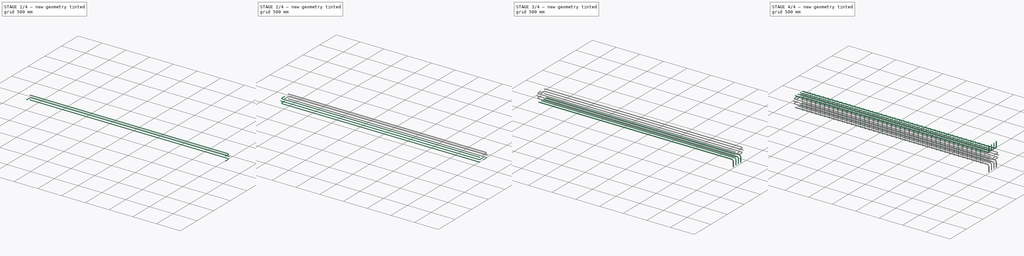
[diagram: build sequence overview — one tinted view per stage of 4, left to right]
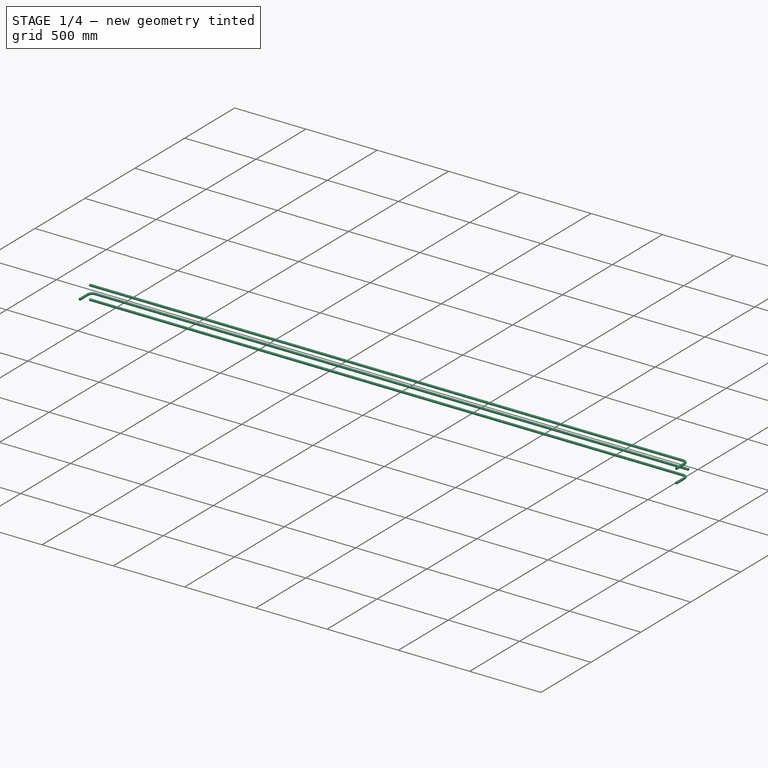
[diagram: stage 1 of 4 — iso view after this stage's code; geometry added in this stage tinted green]
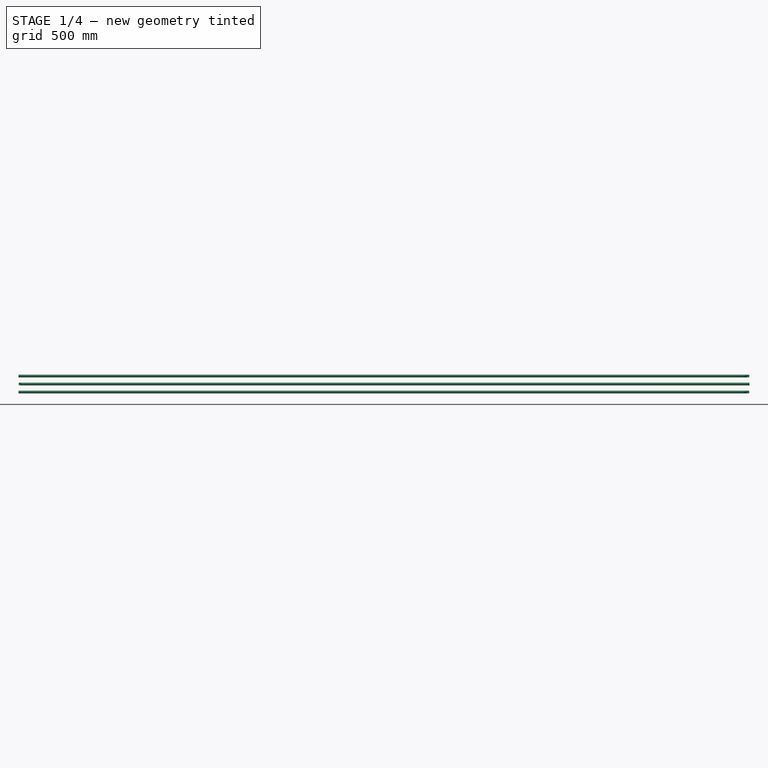
[diagram: stage 1 of 4 — front view after this stage's code; geometry added in this stage tinted green]
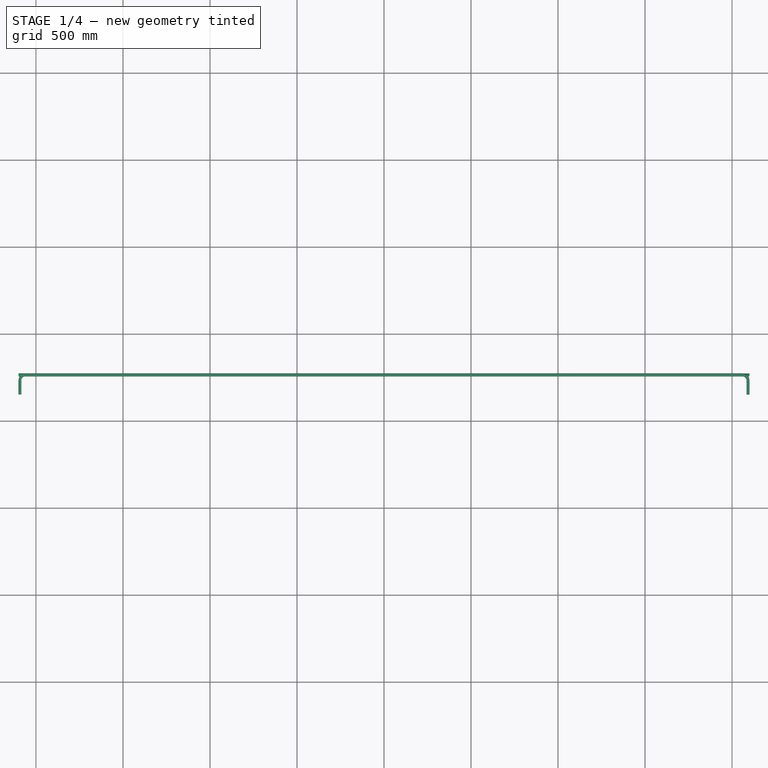
[diagram: stage 1 of 4 — top view after this stage's code; geometry added in this stage tinted green]
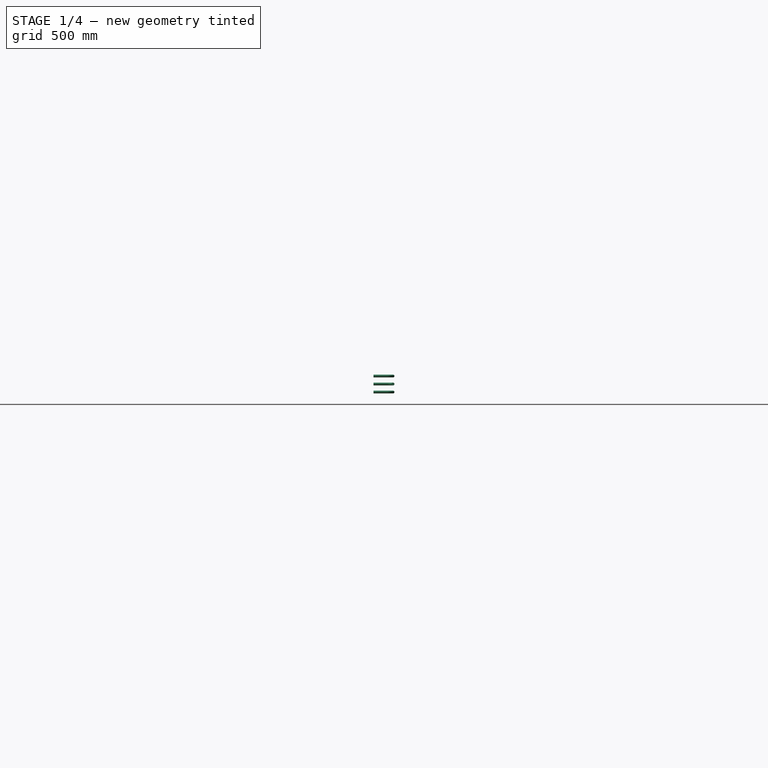
[diagram: stage 1 of 4 — right view after this stage's code; geometry added in this stage tinted green]
FCSTD DOCUMENT  (FreeCAD 0.20R29177 (Git))
Label: Beam Reinforcement
License: All rights reserved
objects: Part::FeaturePython×14, Sketcher::SketchObject×12, App::DocumentObjectGroupPython×7, Part::Part2DObjectPython×2
note: 28 computed .brp shape members not serialized (recipe doc carries the construction recipe); baked Part::Feature solids carry a one-line shape summary decoded from their .brp

FEATURE [Part::Part2DObjectPython] Rectangle  # Draft 2D object (typed FeaturePython)
  Area = 1.2e+06
  ChamferSize = 0
  Columns = 1
  FilletRadius = 0
  Height = 300
  Length = 4000
  MakeFace = true
  Rows = 1
FEATURE [Part::FeaturePython] Structure  # Arch/BIM 172 (typed FeaturePython)
  Base = -> Rectangle
  BaseMirror = false
  BaseOffsetX = 0
  BaseOffsetY = 0
  BasePerpendicularToTool = false
  BaseRotation = 0
  ComputedLength = 300
  FaceMaker = 0
  Height = 300
  HorizontalArea = 1.2e+06
  IfcData = attributes={"GlobalId": {"name": "GlobalId", "type": "IfcGloballyUniqueId", "is_enum": false, "enum_values": []}, "Description": {"... (+484 chars omitted),+1 more (map truncated)
  IfcType = 172
  Length = 0
  MoveBase = false
  MoveWithHost = false
  Nodes = (2) [(2000,150,0),(2000,150,300)]
  NodesOffset = 0
  Normal = (0,0,0)
  PerimeterLength = 8600
  PredefinedType = 0
  ToolOffsetFirst = 0
  ToolOffsetLast = 0
  VerticalArea = 2.58e+06
  Width = 180
FEATURE [App::DocumentObjectGroupPython] LeftRebars  # scripted group (container) (typed FeaturePython)
  Group = -> [Rebar007,Rebar008,Rebar009]
  HookExtension = [80,80,80]
  HookOrientation = Rear Inside | Front Inside | Rear Inside
  LRebarRounding = [2,2,2]
  LeftRebars = -> [Rebar007,Rebar008,Rebar009]
  NumberDiameterOffset = 1#16.0mm@-100.0mm+1#16.0mm@-100.0mm+1#16.0mm@-100.0mm
  RebarSpacing = 30
  RebarType = LShapeRebar | LShapeRebar | LShapeRebar
FEATURE [Sketcher::SketchObject] Sketch009
  FullyConstrained = false
  MapMode = 5
  Placement = pos=(0,0,0) rot=(1,0,0;3.14159rad)
  Support = -> [Structure]
  sketch-geometry (2):
    g0: LineSegment StartX=4092 StartY=-152 StartZ=0 EndX=4092 EndY=-264 EndZ=0
    g1: LineSegment StartX=4092 StartY=-264 StartZ=0 EndX=-100 EndY=-264 EndZ=0
FEATURE [Part::FeaturePython] Rebar010  label="LShapeRebar009"  # Arch/BIM 110 (typed FeaturePython)
  Amount = 1
  AmountCheck = true
  Base = -> Sketch009
  BottomCover = 28
  Diameter = 16
  Direction = (0,0,0)
  Distance = 0
  FrontCover = 96
  HorizontalArea = 0
  Host = -> Structure
  IfcType = 110
  LeftCover = -100
  Length = 4304
  Mark = LShapeRebar009
  MoveBase = false
  MoveWithHost = false
  OffsetEnd = 196
  OffsetStart = 104
  Orientation = Bottom Right
  PerimeterLength = 0
  PlacementList = 1 placements: [(0,0,104)]
  RebarShape = 2
  RightCover = -100
  Rounding = 2
  Spacing = 0
  TopCover = 152
  TotalLength = 4304
  TrueSpacing = 1
  VerticalArea = 0
FEATURE [Sketcher::SketchObject] Sketch010
  FullyConstrained = false
  MapMode = 5
  Placement = pos=(0,0,0) rot=(1,0,0;3.14159rad)
  Support = -> [Structure]
  sketch-geometry (2):
    g0: LineSegment StartX=-92 StartY=-152 StartZ=0 EndX=-92 EndY=-264 EndZ=0
    g1: LineSegment StartX=-92 StartY=-264 StartZ=0 EndX=4100 EndY=-264 EndZ=0
FEATURE [Part::FeaturePython] Rebar011  label="LShapeRebar010"  # Arch/BIM 110 (typed FeaturePython)
  Amount = 1
  AmountCheck = true
  Base = -> Sketch010
  BottomCover = 28
  Diameter = 16
  Direction = (0,0,0)
  Distance = 0
  FrontCover = 142
  HorizontalArea = 0
  Host = -> Structure
  IfcType = 110
  LeftCover = -100
  Length = 4304
  Mark = LShapeRebar010
  MoveBase = false
  MoveWithHost = false
  OffsetEnd = 150
  OffsetStart = 150
  Orientation = Bottom Left
  PerimeterLength = 0
  PlacementList = 1 placements: [(0,0,150)]
  RebarShape = 2
  RightCover = -100
  Rounding = 2
  Spacing = 0
  TopCover = 152
  TotalLength = 4304
  TrueSpacing = 1
  VerticalArea = 0
FEATURE [Sketcher::SketchObject] Sketch011
  FullyConstrained = false
  MapMode = 5
  Placement = pos=(0,0,0) rot=(1,0,0;3.14159rad)
  Support = -> [Structure]
  sketch-geometry (2):
    g0: LineSegment StartX=4092 StartY=-152 StartZ=0 EndX=4092 EndY=-264 EndZ=0
    g1: LineSegment StartX=4092 StartY=-264 StartZ=0 EndX=-100 EndY=-264 EndZ=0
FEATURE [Part::FeaturePython] Rebar012  label="LShapeRebar011"  # Arch/BIM 110 (typed FeaturePython)
  Amount = 1
  AmountCheck = true
  Base = -> Sketch011
  BottomCover = 28
  Diameter = 16
  Direction = (0,0,0)
  Distance = 0
  FrontCover = 188
  HorizontalArea = 0
  Host = -> Structure
  IfcType = 110
  LeftCover = -100
  Length = 4304
  Mark = LShapeRebar011
  MoveBase = false
  MoveWithHost = false
  OffsetEnd = 104
  OffsetStart = 196
  Orientation = Bottom Right
  PerimeterLength = 0
  PlacementList = 1 placements: [(0,0,196)]
  RebarShape = 2
  RightCover = -100
  Rounding = 2
  Spacing = 0
  TopCover = 152
  TotalLength = 4304
  TrueSpacing = 1
  VerticalArea = 0
FEATURE [App::DocumentObjectGroupPython] RightRebars  # scripted group (container) (typed FeaturePython)
  Group = -> [Rebar010,Rebar011,Rebar012]
  HookExtension = [80,80,80]
  HookOrientation = Front Inside | Rear Inside | Front Inside
  LRebarRounding = [2,2,2]
  NumberDiameterOffset = 1#16@-100+1#16@-100+1#16@-100
  RebarSpacing = 30
  RebarType = LShapeRebar | LShapeRebar | LShapeRebar
  RightRebars = -> [Rebar010,Rebar011,Rebar012]
FEATURE [App::DocumentObjectGroupPython] ShearReinforcement  # scripted group (container) (typed FeaturePython)
  Group = -> [LeftRebars,RightRebars]
  ShearReinforcementGroups = -> [LeftRebars,RightRebars]
FEATURE [App::DocumentObjectGroupPython] BeamReinforcement  # scripted group (container) (typed FeaturePython)
  Group = -> [Stirrups,TopReinforcement,BottomReinforcement,ShearReinforcement]
  ReinforcementGroups = -> [Stirrups,TopReinforcement,BottomReinforcement,ShearReinforcement]
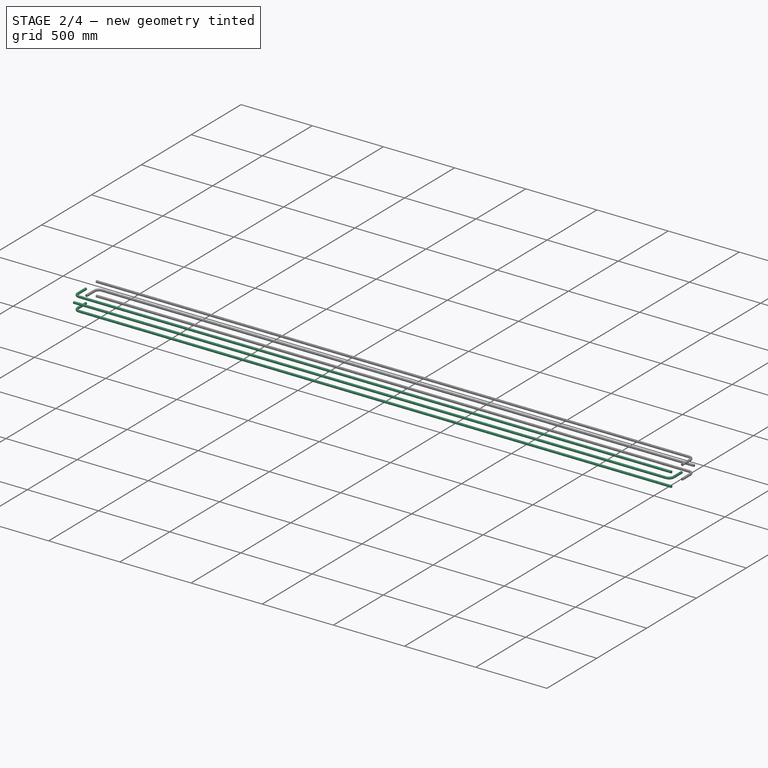
[diagram: stage 2 of 4 — iso view after this stage's code; geometry added in this stage tinted green]
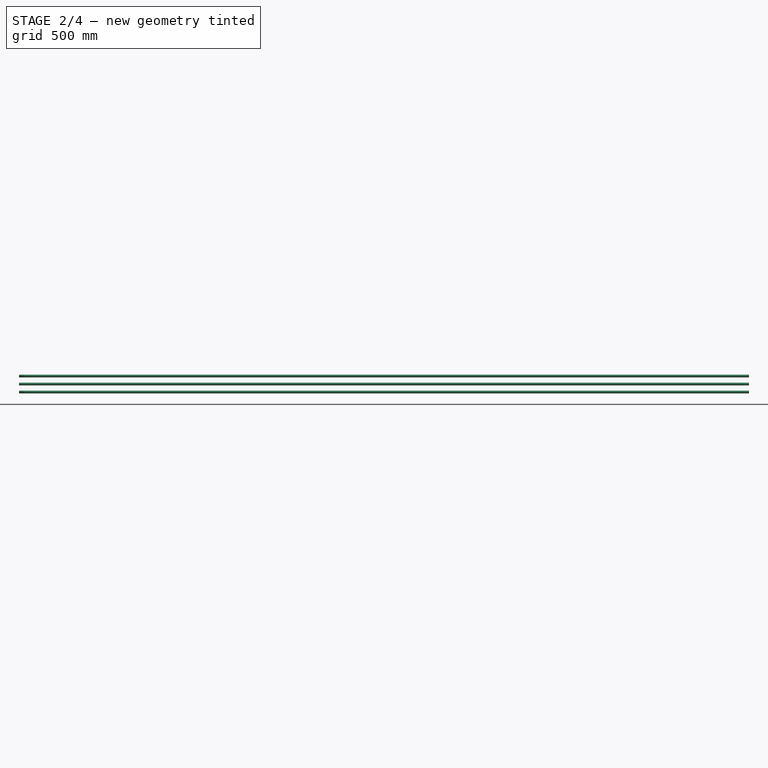
[diagram: stage 2 of 4 — front view after this stage's code; geometry added in this stage tinted green]
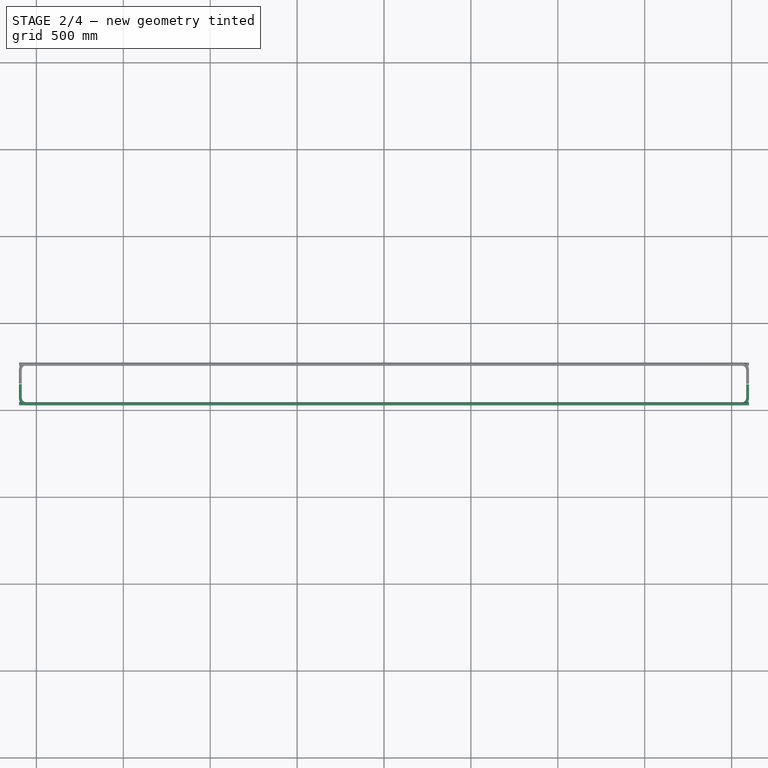
[diagram: stage 2 of 4 — top view after this stage's code; geometry added in this stage tinted green]
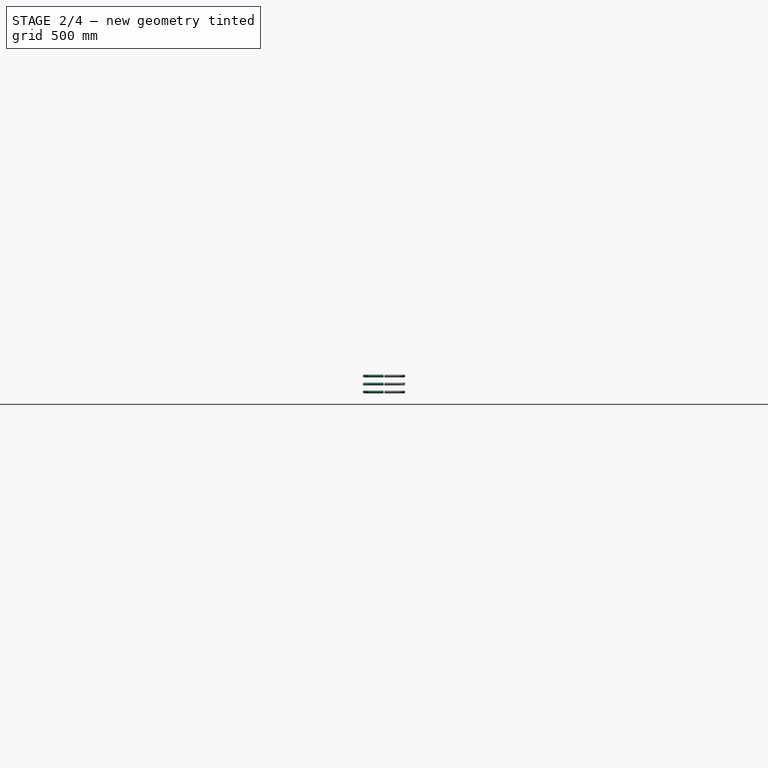
[diagram: stage 2 of 4 — right view after this stage's code; geometry added in this stage tinted green]
FEATURE [App::DocumentObjectGroupPython] BottomReinforcement  # scripted group (container) (typed FeaturePython)
  BottomRebars = -> [Rebar004,Rebar005,Rebar006]
  Group = -> [Rebar004,Rebar005,Rebar006]
  LayerSpacing = [30]
  NumberDiameterOffset = 1#20.0@-60.0+2#16.0@-60.0+1#20.0@-60.0
FEATURE [Sketcher::SketchObject] Sketch006
  FullyConstrained = false
  MapMode = 5
  Placement = pos=(0,0,0) rot=(1,0,0;3.14159rad)
  Support = -> [Structure]
  sketch-geometry (2):
    g0: LineSegment StartX=-92 StartY=-148 StartZ=0 EndX=-92 EndY=-36 EndZ=0
    g1: LineSegment StartX=-92 StartY=-36 StartZ=0 EndX=4100 EndY=-36 EndZ=0
FEATURE [Part::FeaturePython] Rebar007  label="LShapeRebar006"  # Arch/BIM 110 (typed FeaturePython)
  Amount = 1
  AmountCheck = true
  Base = -> Sketch006
  BottomCover = 152
  Diameter = 16
  Direction = (0,0,0)
  Distance = 0
  FrontCover = 96
  HorizontalArea = 0
  Host = -> Structure
  IfcType = 110
  LeftCover = -100
  Length = 4304
  Mark = LShapeRebar006
  MoveBase = false
  MoveWithHost = false
  OffsetEnd = 196
  OffsetStart = 104
  Orientation = Top Left
  PerimeterLength = 0
  PlacementList = 1 placements: [(0,0,104)]
  RebarShape = 2
  RightCover = -100
  Rounding = 2
  Spacing = 0
  TopCover = 28
  TotalLength = 4304
  TrueSpacing = 1
  VerticalArea = 0
FEATURE [Sketcher::SketchObject] Sketch007
  FullyConstrained = false
  MapMode = 5
  Placement = pos=(0,0,0) rot=(1,0,0;3.14159rad)
  Support = -> [Structure]
  sketch-geometry (2):
    g0: LineSegment StartX=4092 StartY=-148 StartZ=0 EndX=4092 EndY=-36 EndZ=0
    g1: LineSegment StartX=4092 StartY=-36 StartZ=0 EndX=-100 EndY=-36 EndZ=0
FEATURE [Part::FeaturePython] Rebar008  label="LShapeRebar007"  # Arch/BIM 110 (typed FeaturePython)
  Amount = 1
  AmountCheck = true
  Base = -> Sketch007
  BottomCover = 152
  Diameter = 16
  Direction = (0,0,0)
  Distance = 0
  FrontCover = 142
  HorizontalArea = 0
  Host = -> Structure
  IfcType = 110
  LeftCover = -100
  Length = 4304
  Mark = LShapeRebar007
  MoveBase = false
  MoveWithHost = false
  OffsetEnd = 150
  OffsetStart = 150
  Orientation = Top Right
  PerimeterLength = 0
  PlacementList = 1 placements: [(0,0,150)]
  RebarShape = 2
  RightCover = -100
  Rounding = 2
  Spacing = 0
  TopCover = 28
  TotalLength = 4304
  TrueSpacing = 1
  VerticalArea = 0
FEATURE [Sketcher::SketchObject] Sketch008
  FullyConstrained = false
  MapMode = 5
  Placement = pos=(0,0,0) rot=(1,0,0;3.14159rad)
  Support = -> [Structure]
  sketch-geometry (2):
    g0: LineSegment StartX=-92 StartY=-148 StartZ=0 EndX=-92 EndY=-36 EndZ=0
    g1: LineSegment StartX=-92 StartY=-36 StartZ=0 EndX=4100 EndY=-36 EndZ=0
FEATURE [Part::FeaturePython] Rebar009  label="LShapeRebar008"  # Arch/BIM 110 (typed FeaturePython)
  Amount = 1
  AmountCheck = true
  Base = -> Sketch008
  BottomCover = 152
  Diameter = 16
  Direction = (0,0,0)
  Distance = 0
  FrontCover = 188
  HorizontalArea = 0
  Host = -> Structure
  IfcType = 110
  LeftCover = -100
  Length = 4304
  Mark = LShapeRebar008
  MoveBase = false
  MoveWithHost = false
  OffsetEnd = 104
  OffsetStart = 196
  Orientation = Top Left
  PerimeterLength = 0
  PlacementList = 1 placements: [(0,0,196)]
  RebarShape = 2
  RightCover = -100
  Rounding = 2
  Spacing = 0
  TopCover = 28
  TotalLength = 4304
  TrueSpacing = 1
  VerticalArea = 0
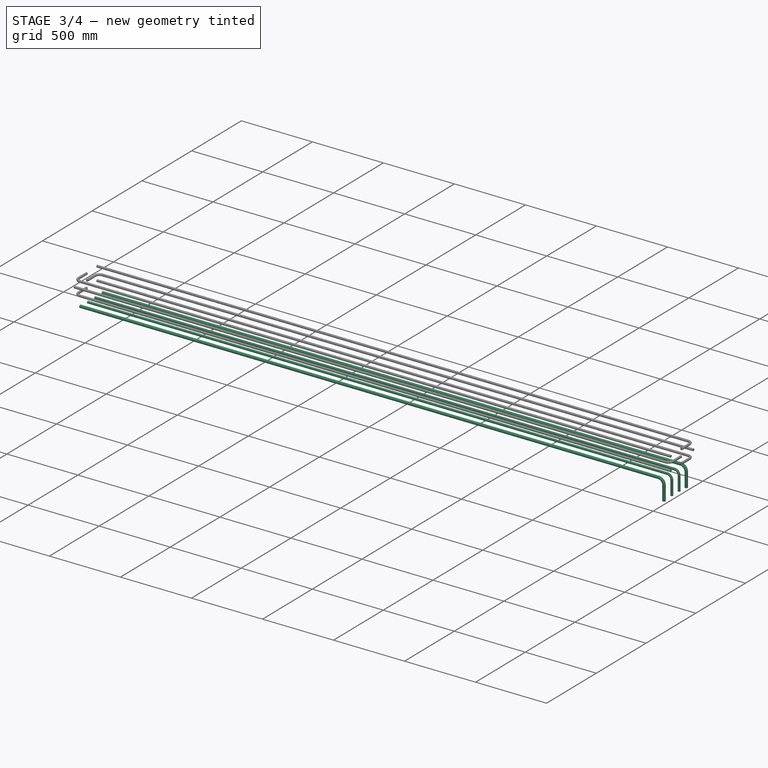
[diagram: stage 3 of 4 — iso view after this stage's code; geometry added in this stage tinted green]
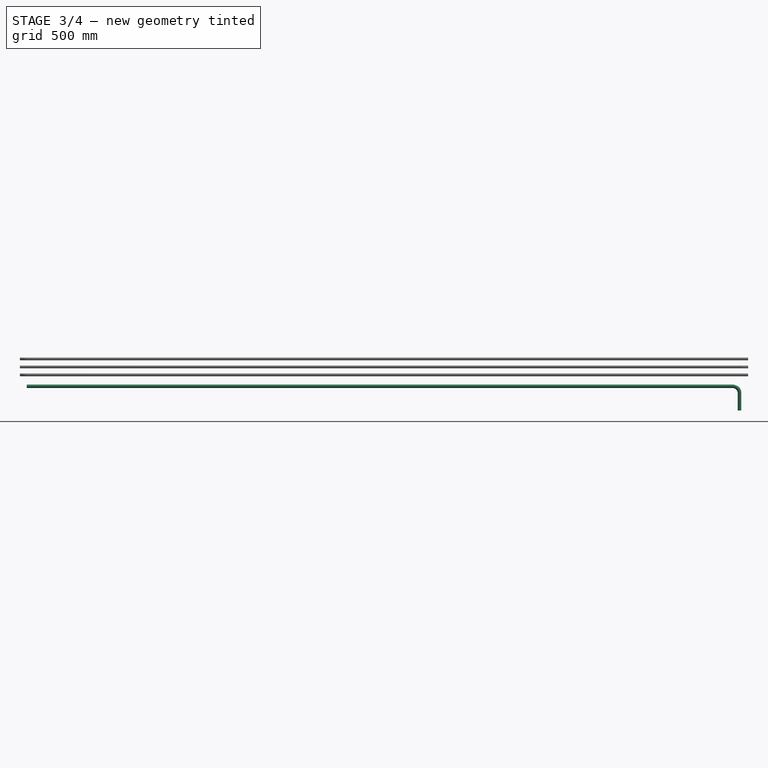
[diagram: stage 3 of 4 — front view after this stage's code; geometry added in this stage tinted green]
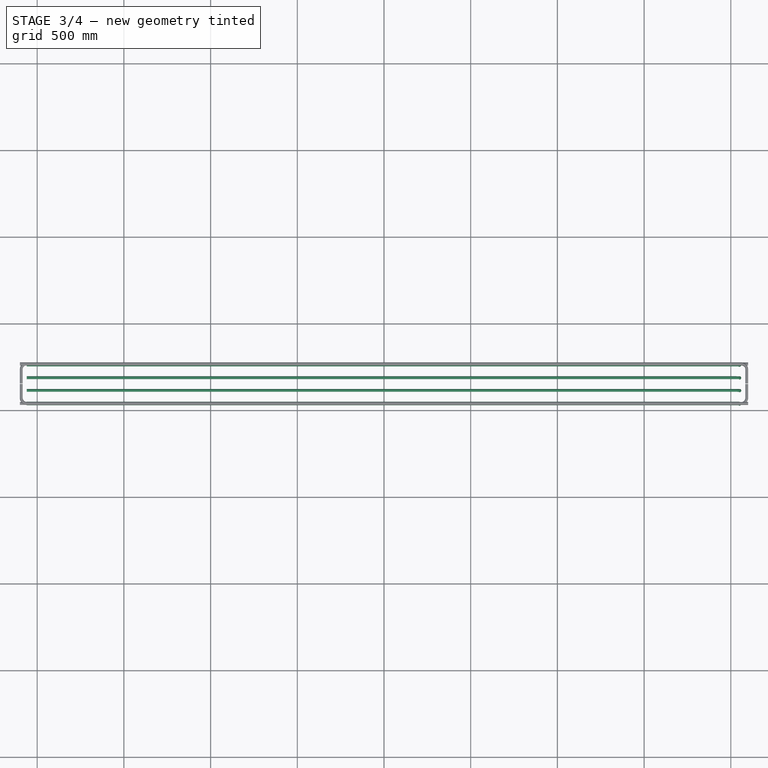
[diagram: stage 3 of 4 — top view after this stage's code; geometry added in this stage tinted green]
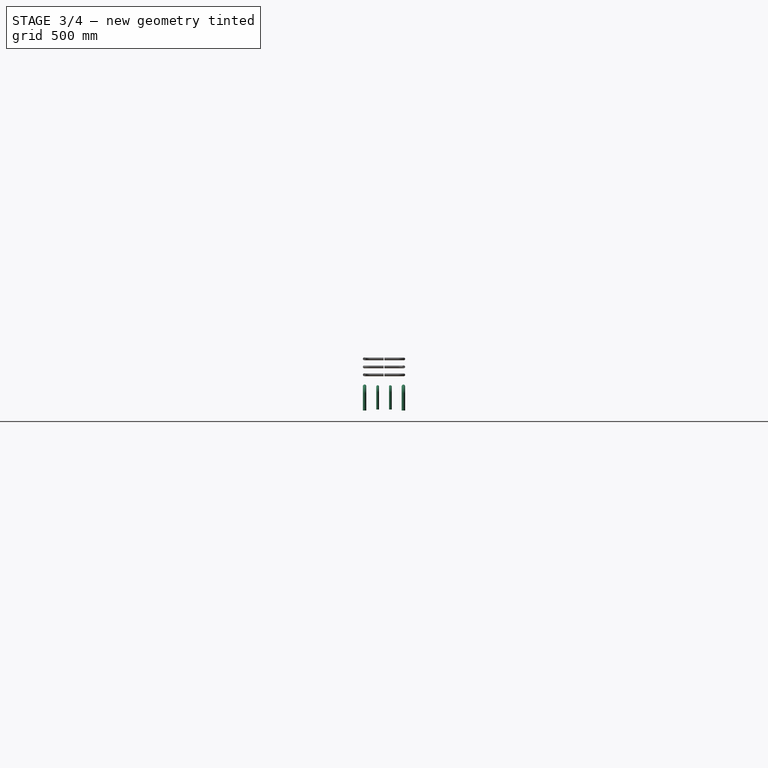
[diagram: stage 3 of 4 — right view after this stage's code; geometry added in this stage tinted green]
FEATURE [App::DocumentObjectGroupPython] TopReinforcement  # scripted group (container) (typed FeaturePython)
  Group = -> [Rebar001,Rebar002,Rebar003]
  LayerSpacing = [30]
  NumberDiameterOffset = 1#20.0@-60.0+2#16.0@-60.0+1#20.0@-60.0
  TopRebars = -> [Rebar001,Rebar002,Rebar003]
FEATURE [Sketcher::SketchObject] Sketch003
  FullyConstrained = false
  MapMode = 5
  Placement = pos=(0,300,0) rot=(0,0.707107,0.707107;3.14159rad)
  Support = -> [Structure]
  sketch-geometry (2):
    g0: LineSegment StartX=-4050 StartY=-102 StartZ=0 EndX=-4050 EndY=38 EndZ=0
    g1: LineSegment StartX=-4050 StartY=38 StartZ=0 EndX=60 EndY=38 EndZ=0
FEATURE [Part::FeaturePython] Rebar004  label="LShapeRebar003"  # Arch/BIM 110 (typed FeaturePython)
  Amount = 1
  AmountCheck = true
  Base = -> Sketch003
  BottomCover = 28
  Diameter = 20
  Direction = (0,0,0)
  Distance = 0
  FrontCover = 28
  HorizontalArea = 0
  Host = -> Structure
  IfcType = 110
  LeftCover = -60
  Length = 4250
  Mark = LShapeRebar003
  MoveBase = false
  MoveWithHost = false
  OffsetEnd = 38
  OffsetStart = 38
  Orientation = Bottom Left
  PerimeterLength = 0
  PlacementList = 1 placements: [(0,-38,8.43769e-15)]
  RebarShape = 2
  RightCover = -60
  Rounding = 2
  Spacing = 0
  TopCover = 402
  TotalLength = 4250
  TrueSpacing = 1
  VerticalArea = 0
FEATURE [Sketcher::SketchObject] Sketch004
  FullyConstrained = false
  MapMode = 5
  Placement = pos=(0,300,0) rot=(0,0.707107,0.707107;3.14159rad)
  Support = -> [Structure]
  sketch-geometry (2):
    g0: LineSegment StartX=-4052 StartY=-96 StartZ=0 EndX=-4052 EndY=36 EndZ=0
    g1: LineSegment StartX=-4052 StartY=36 StartZ=0 EndX=60 EndY=36 EndZ=0
FEATURE [Part::FeaturePython] Rebar005  label="LShapeRebar004"  # Arch/BIM 110 (typed FeaturePython)
  Amount = 2
  AmountCheck = true
  Base = -> Sketch004
  BottomCover = 28
  Diameter = 16
  Direction = (0,0,0)
  Distance = 0
  FrontCover = 105.333
  HorizontalArea = 0
  Host = -> Structure
  IfcType = 110
  LeftCover = -60
  Length = 4244
  Mark = LShapeRebar004
  MoveBase = false
  MoveWithHost = false
  OffsetEnd = 113.333
  OffsetStart = 113.333
  Orientation = Bottom Left
  PerimeterLength = 0
  PlacementList = 2 placements: [(0,-113.333,2.51651e-14),(0,-186.667,4.14483e-14)]
  RebarShape = 2
  RightCover = -60
  Rounding = 2
  Spacing = 73.3333
  TopCover = 396
  TotalLength = 8488
  TrueSpacing = 2
  VerticalArea = 0
FEATURE [Sketcher::SketchObject] Sketch005
  FullyConstrained = false
  MapMode = 5
  Placement = pos=(0,300,0) rot=(0,0.707107,0.707107;3.14159rad)
  Support = -> [Structure]
  sketch-geometry (2):
    g0: LineSegment StartX=-4050 StartY=-102 StartZ=0 EndX=-4050 EndY=38 EndZ=0
    g1: LineSegment StartX=-4050 StartY=38 StartZ=0 EndX=60 EndY=38 EndZ=0
FEATURE [Part::FeaturePython] Rebar006  label="LShapeRebar005"  # Arch/BIM 110 (typed FeaturePython)
  Amount = 1
  AmountCheck = true
  Base = -> Sketch005
  BottomCover = 28
  Diameter = 20
  Direction = (0,0,0)
  Distance = 0
  FrontCover = 252
  HorizontalArea = 0
  Host = -> Structure
  IfcType = 110
  LeftCover = -60
  Length = 4250
  Mark = LShapeRebar005
  MoveBase = false
  MoveWithHost = false
  OffsetEnd = 38
  OffsetStart = 262
  Orientation = Bottom Left
  PerimeterLength = 0
  PlacementList = 1 placements: [(0,-262,5.81757e-14)]
  RebarShape = 2
  RightCover = -60
  Rounding = 2
  Spacing = 0
  TopCover = 402
  TotalLength = 4250
  TrueSpacing = 1
  VerticalArea = 0
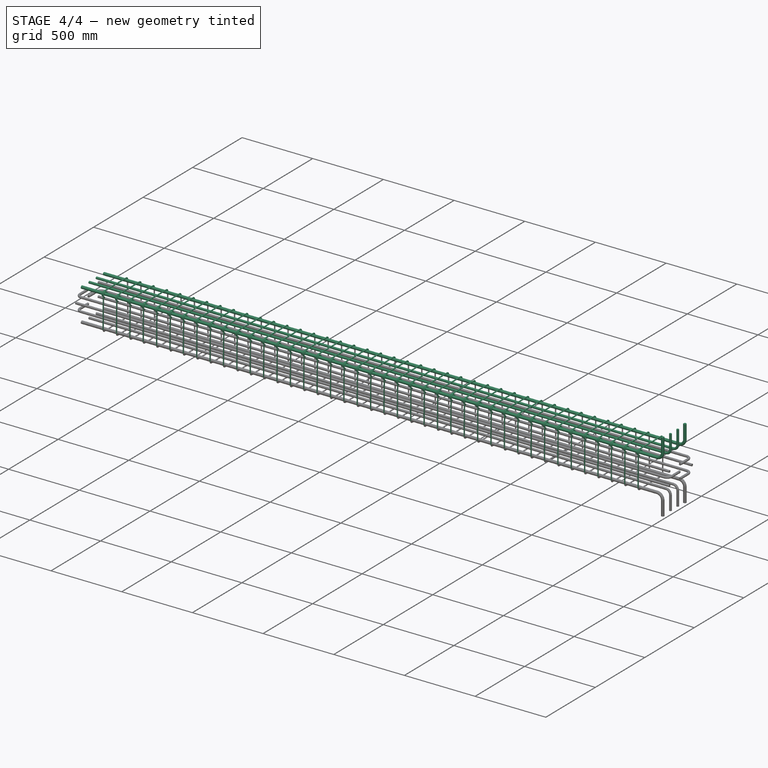
[diagram: stage 4 of 4 — iso view after this stage's code; geometry added in this stage tinted green]
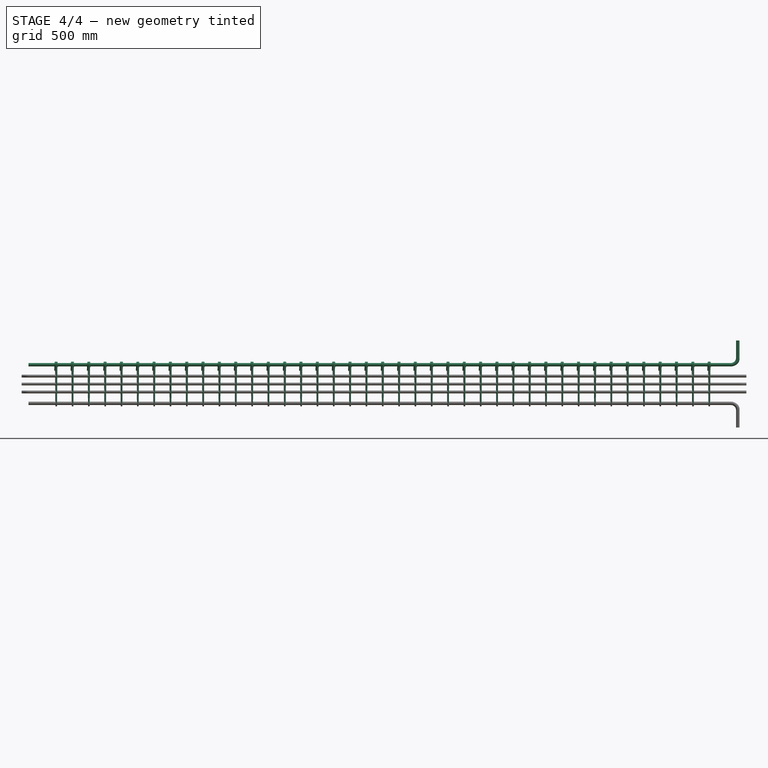
[diagram: stage 4 of 4 — front view after this stage's code; geometry added in this stage tinted green]
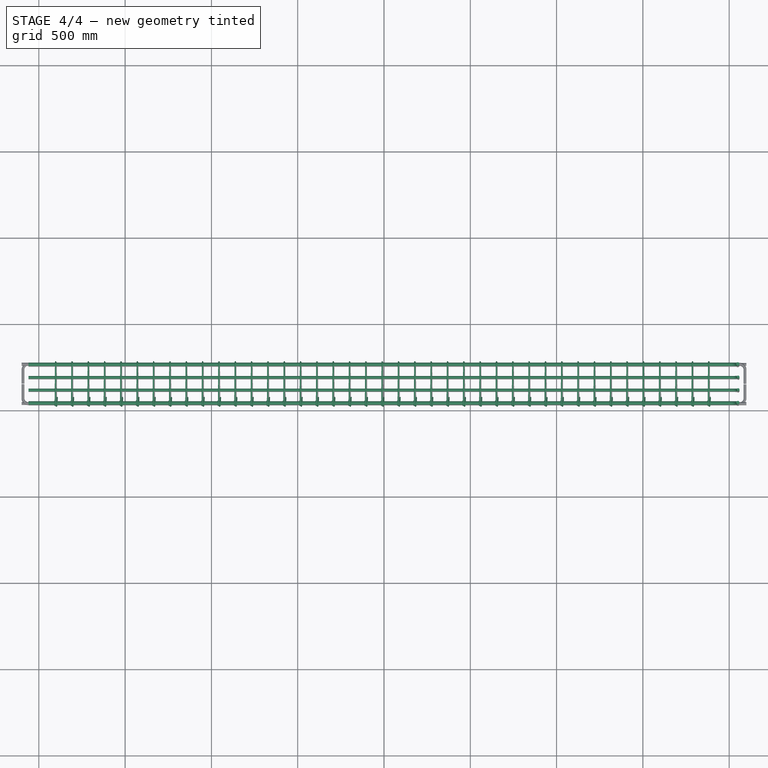
[diagram: stage 4 of 4 — top view after this stage's code; geometry added in this stage tinted green]
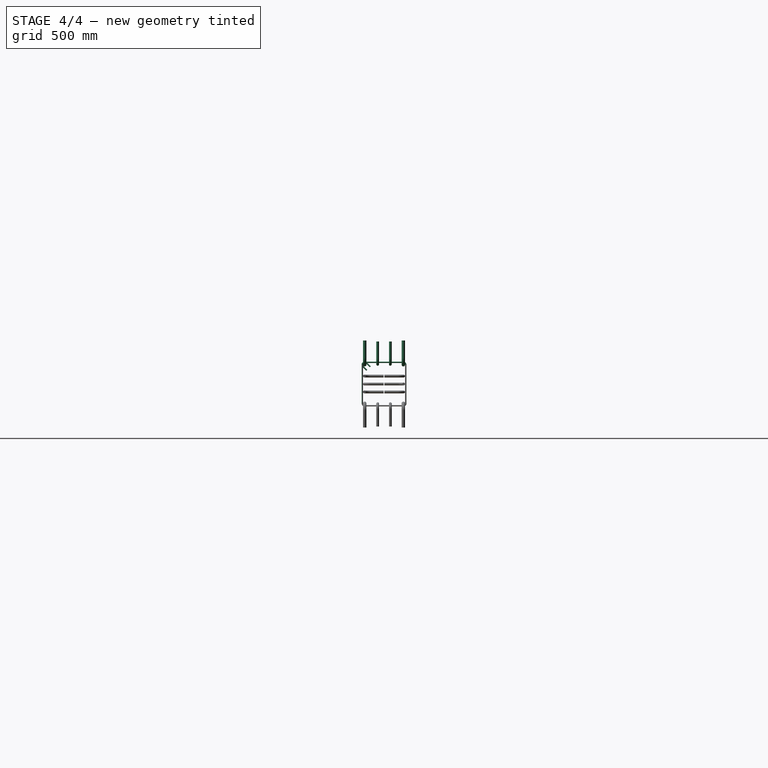
[diagram: stage 4 of 4 — right view after this stage's code; geometry added in this stage tinted green]
FEATURE [Part::Part2DObjectPython] Wire  # Draft 2D object (typed FeaturePython)
  Area = 0
  ChamferSize = 0
  Closed = false
  End = (-10.7857,50.7279,229.473)
  FilletRadius = 0
  Length = 1179.3
  MakeFace = true
  Points = (7) [(2.15713,70.5269,249.272),(0,24,295.799),(-2.15713,24,24),(-4.31427,276,24),(-6.4714,276,276),(-8.62854,4.20101,276),(-10.7857,50.7279,229.473)]
  Start = (2.15713,70.5269,249.272)
  Subdivisions = 0
  Support = -> [Structure]
FEATURE [Part::FeaturePython] Rebar  label="Stirrup"  # Arch/BIM 110 (typed FeaturePython)
  Amount = 41
  AmountCheck = false
  Base = -> Wire
  BentAngle = 135
  BentFactor = 4
  BottomCover = 20
  Diameter = 8
  Direction = (1,0,0)
  Distance = 0
  FrontCover = 100
  HorizontalArea = 0
  Host = -> Structure
  IfcType = 110
  LeftCover = 20
  Length = 1179.3
  Mark = Stirrup
  MoveBase = false
  MoveWithHost = false
  OffsetEnd = 104
  OffsetStart = 104
  PerimeterLength = 0
  PlacementList = 41 placements: arithmetic series from (104,0,0) step (94.6,0,0) to (3888,0,0)
  RebarShape = 3
  RightCover = 20
  Rounding = 1.75
  Spacing = 94.6
  TopCover = 20
  TotalLength = 48351.4
  TrueSpacing = 100
  VerticalArea = 0
FEATURE [App::DocumentObjectGroupPython] Stirrups  # scripted group (container) (typed FeaturePython)
  Group = -> [Rebar]
  Stirrups = -> [Rebar]
  StirrupsConfiguration = Two Legged Stirrups
FEATURE [Sketcher::SketchObject] Sketch
  FullyConstrained = false
  MapMode = 5
  Placement = pos=(0,300,0) rot=(0,0.707107,0.707107;3.14159rad)
  Support = -> [Structure]
  sketch-geometry (2):
    g0: LineSegment StartX=-4050 StartY=402 StartZ=0 EndX=-4050 EndY=262 EndZ=0
    g1: LineSegment StartX=-4050 StartY=262 StartZ=0 EndX=60 EndY=262 EndZ=0
FEATURE [Part::FeaturePython] Rebar001  label="LShapeRebar"  # Arch/BIM 110 (typed FeaturePython)
  Amount = 1
  AmountCheck = true
  Base = -> Sketch
  BottomCover = 402
  Diameter = 20
  Direction = (0,0,0)
  Distance = 0
  FrontCover = 28
  HorizontalArea = 0
  Host = -> Structure
  IfcType = 110
  LeftCover = -60
  Length = 4250
  Mark = LShapeRebar
  MoveBase = false
  MoveWithHost = false
  OffsetEnd = 38
  OffsetStart = 38
  Orientation = Top Left
  PerimeterLength = 0
  PlacementList = 1 placements: [(0,-38,8.43769e-15)]
  RebarShape = 2
  RightCover = -60
  Rounding = 2
  Spacing = 0
  TopCover = 28
  TotalLength = 4250
  TrueSpacing = 1
  VerticalArea = 0
FEATURE [Sketcher::SketchObject] Sketch001
  FullyConstrained = false
  MapMode = 5
  Placement = pos=(0,300,0) rot=(0,0.707107,0.707107;3.14159rad)
  Support = -> [Structure]
  sketch-geometry (2):
    g0: LineSegment StartX=-4052 StartY=396 StartZ=0 EndX=-4052 EndY=264 EndZ=0
    g1: LineSegment StartX=-4052 StartY=264 StartZ=0 EndX=60 EndY=264 EndZ=0
FEATURE [Part::FeaturePython] Rebar002  label="LShapeRebar001"  # Arch/BIM 110 (typed FeaturePython)
  Amount = 2
  AmountCheck = true
  Base = -> Sketch001
  BottomCover = 396
  Diameter = 16
  Direction = (0,0,0)
  Distance = 0
  FrontCover = 105.333
  HorizontalArea = 0
  Host = -> Structure
  IfcType = 110
  LeftCover = -60
  Length = 4244
  Mark = LShapeRebar001
  MoveBase = false
  MoveWithHost = false
  OffsetEnd = 113.333
  OffsetStart = 113.333
  Orientation = Top Left
  PerimeterLength = 0
  PlacementList = 2 placements: [(0,-113.333,2.51651e-14),(0,-186.667,4.14483e-14)]
  RebarShape = 2
  RightCover = -60
  Rounding = 2
  Spacing = 73.3333
  TopCover = 28
  TotalLength = 8488
  TrueSpacing = 2
  VerticalArea = 0
FEATURE [Sketcher::SketchObject] Sketch002
  FullyConstrained = false
  MapMode = 5
  Placement = pos=(0,300,0) rot=(0,0.707107,0.707107;3.14159rad)
  Support = -> [Structure]
  sketch-geometry (2):
    g0: LineSegment StartX=-4050 StartY=402 StartZ=0 EndX=-4050 EndY=262 EndZ=0
    g1: LineSegment StartX=-4050 StartY=262 StartZ=0 EndX=60 EndY=262 EndZ=0
FEATURE [Part::FeaturePython] Rebar003  label="LShapeRebar002"  # Arch/BIM 110 (typed FeaturePython)
  Amount = 1
  AmountCheck = true
  Base = -> Sketch002
  BottomCover = 402
  Diameter = 20
  Direction = (0,0,0)
  Distance = 0
  FrontCover = 252
  HorizontalArea = 0
  Host = -> Structure
  IfcType = 110
  LeftCover = -60
  Length = 4250
  Mark = LShapeRebar002
  MoveBase = false
  MoveWithHost = false
  OffsetEnd = 38
  OffsetStart = 262
  Orientation = Top Left
  PerimeterLength = 0
  PlacementList = 1 placements: [(0,-262,5.81757e-14)]
  RebarShape = 2
  RightCover = -60
  Rounding = 2
  Spacing = 0
  TopCover = 28
  TotalLength = 4250
  TrueSpacing = 1
  VerticalArea = 0
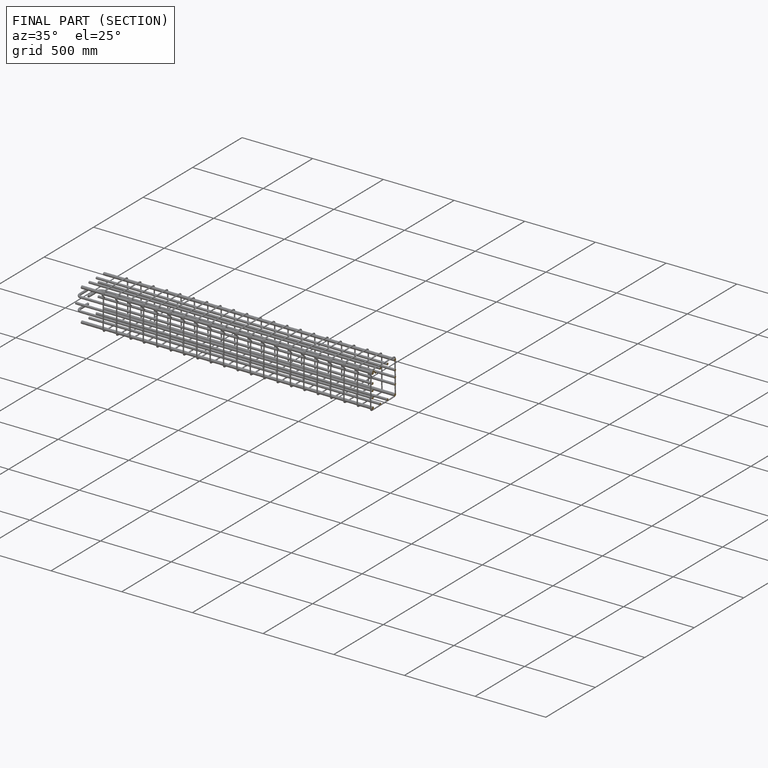
[diagram: finished part — half-section view (interior)]
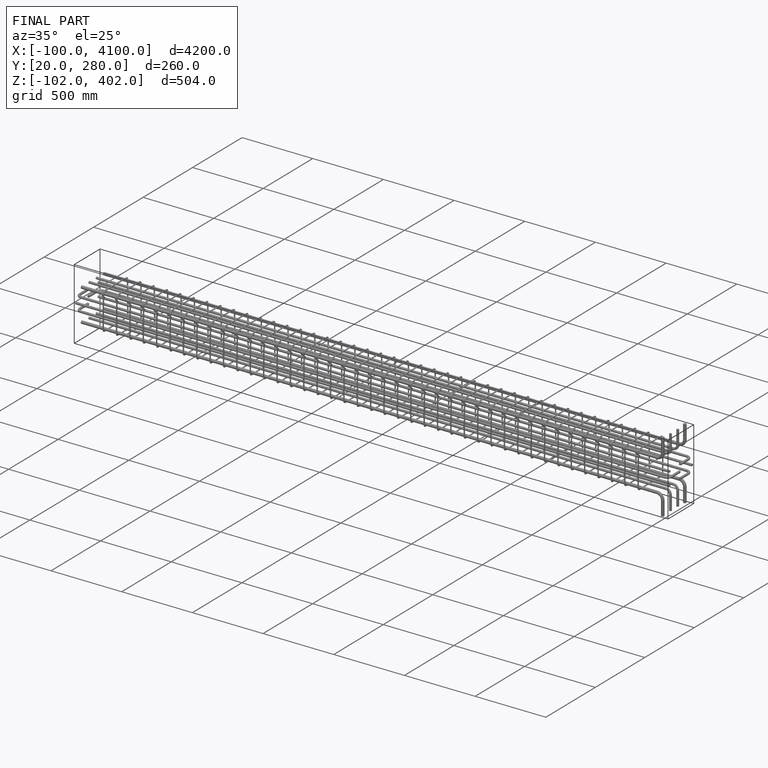
[diagram: finished part — iso view with bounding-box wireframe]
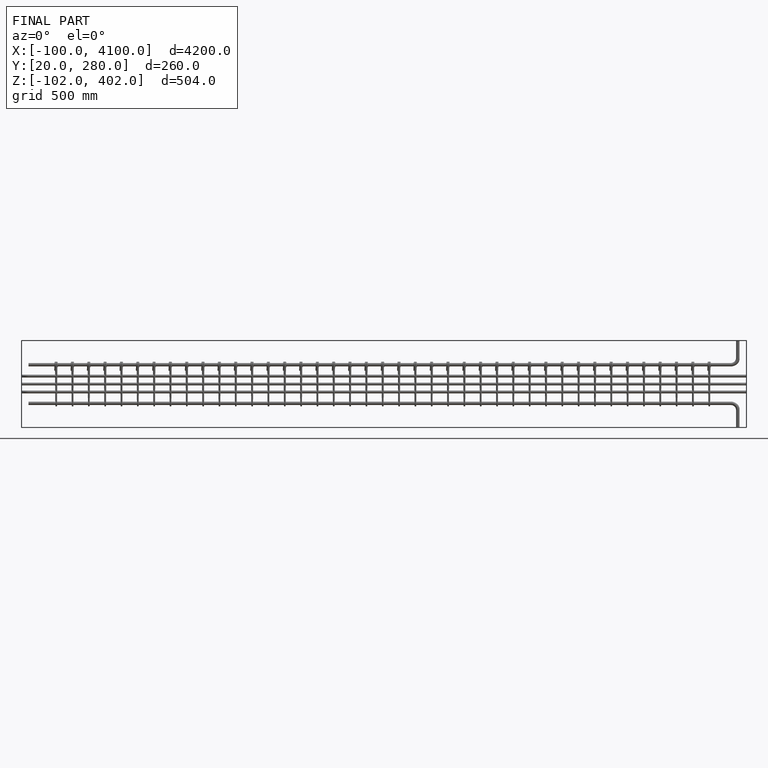
[diagram: finished part — front view with bounding-box wireframe]
